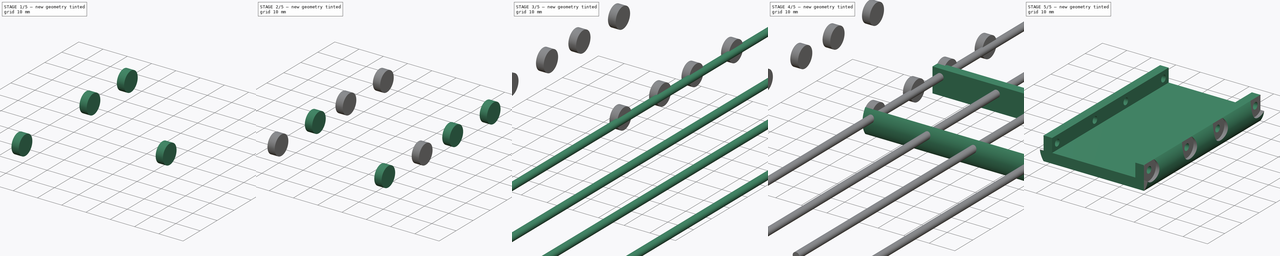
[diagram: build sequence overview — one tinted view per stage of 5, left to right]
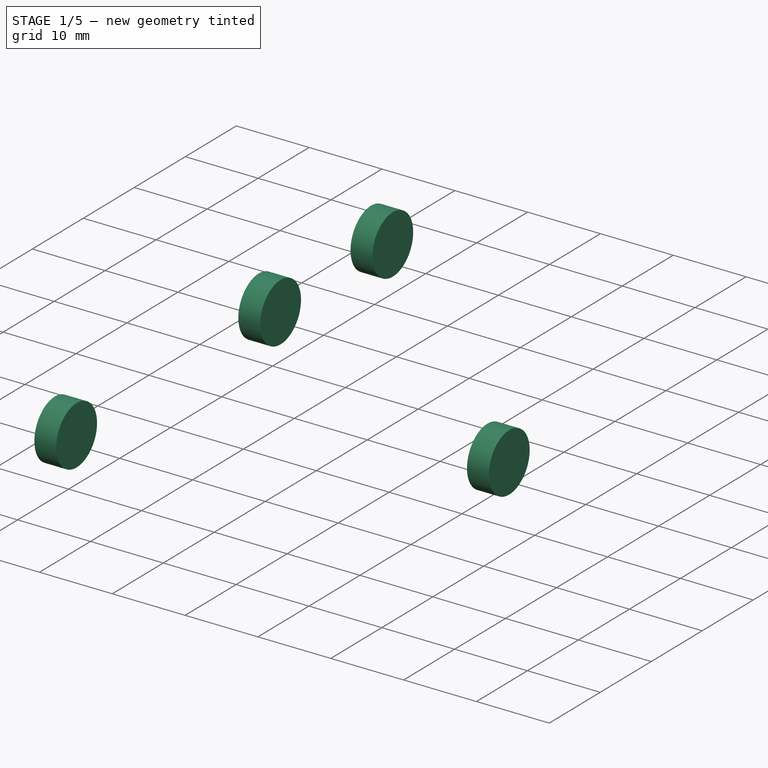
[diagram: stage 1 of 5 — iso view after this stage's code; geometry added in this stage tinted green]
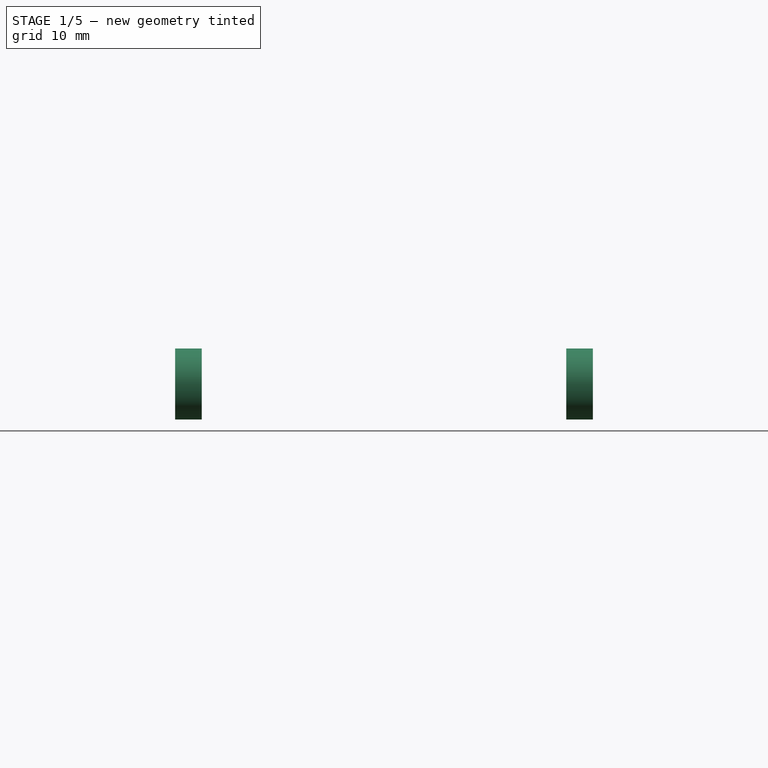
[diagram: stage 1 of 5 — front view after this stage's code; geometry added in this stage tinted green]
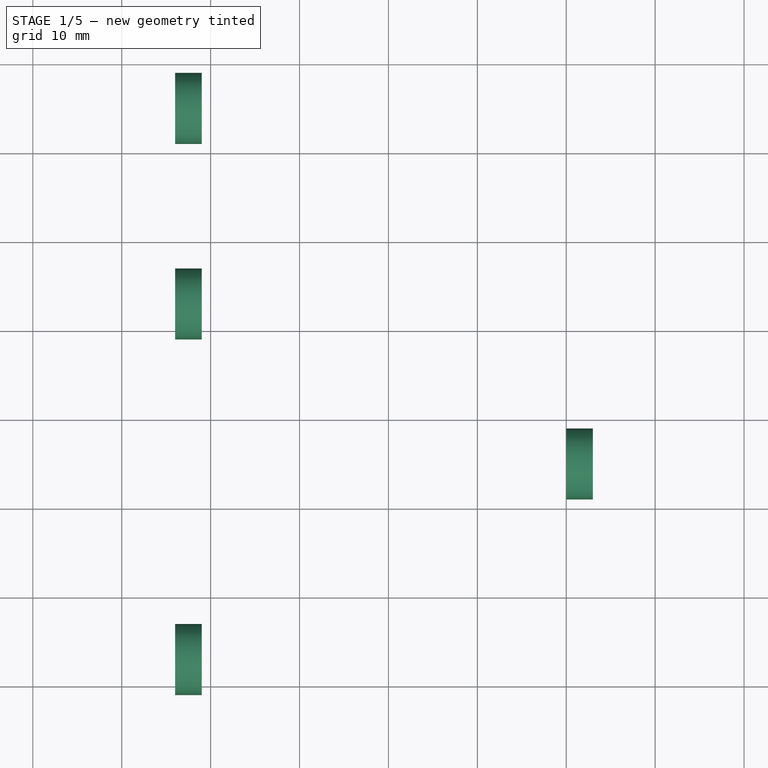
[diagram: stage 1 of 5 — top view after this stage's code; geometry added in this stage tinted green]
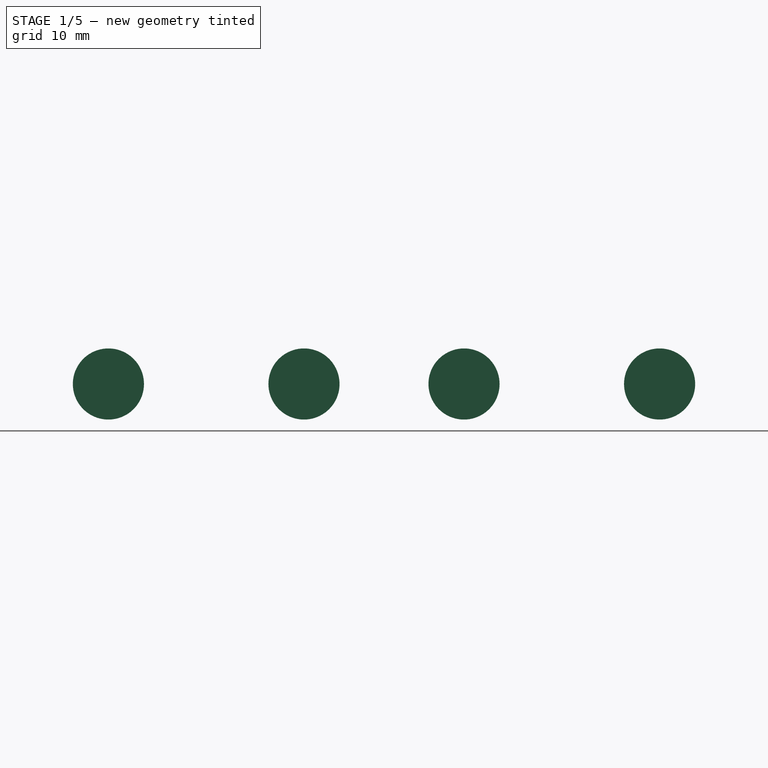
[diagram: stage 1 of 5 — right view after this stage's code; geometry added in this stage tinted green]
FCSTD DOCUMENT  (FreeCAD 0.14R3052 (Git))
Label: inter_mx-64_mount
License: CC-BY 3.0
LicenseURL: http://creativecommons.org/licenses/by/3.0/
objects: Part::Extrusion×13, Sketcher::SketchObject×4, Part::Box×3, Part::MultiFuse×3, Part::Cut×2, Part::Mirroring×1
note: 26 computed .brp shape members not serialized (recipe doc carries the construction recipe); baked Part::Feature solids carry a one-line shape summary decoded from their .brp

FEATURE [Part::Extrusion] Extrude011
  Base = -> Sketch003
  Dir = (-3,0,0)
  Placement = pos=(-44,0,0) rot=(0,0,1;0rad)
  Solid = true
FEATURE [Part::Extrusion] Extrude012
  Base = -> Sketch002
  Dir = (-3,0,0)
  Placement = pos=(0,22,0) rot=(0,0,1;0rad)
  Solid = true
FEATURE [Part::Extrusion] Extrude013
  Base = -> Sketch002
  Dir = (-3,0,0)
  Placement = pos=(-44,40,0) rot=(0,0,1;0rad)
  Solid = true
FEATURE [Part::Extrusion] Extrude014
  Base = -> Sketch002
  Dir = (-3,0,0)
  Placement = pos=(-44,62,0) rot=(0,0,1;0rad)
  Solid = true
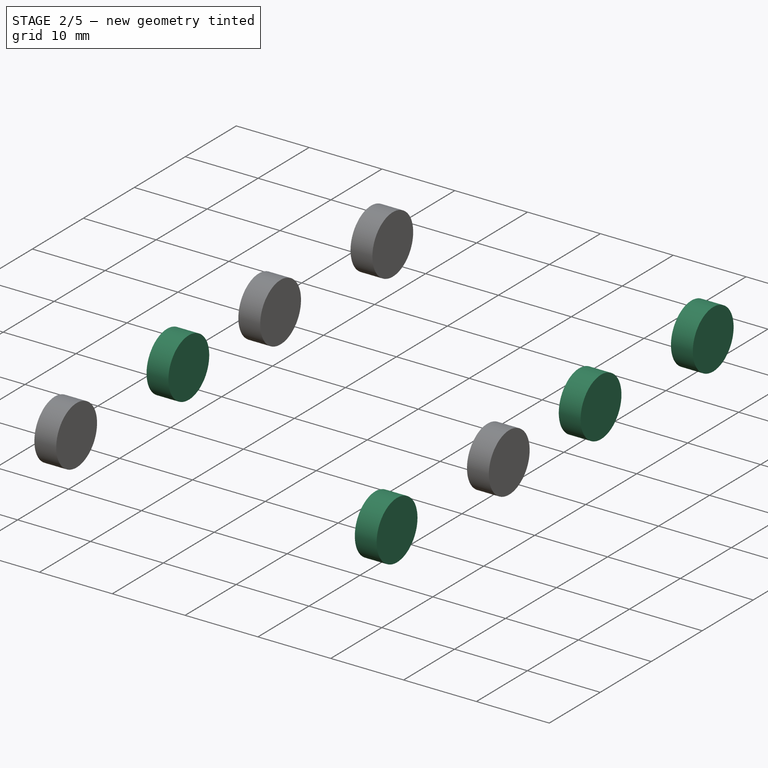
[diagram: stage 2 of 5 — iso view after this stage's code; geometry added in this stage tinted green]
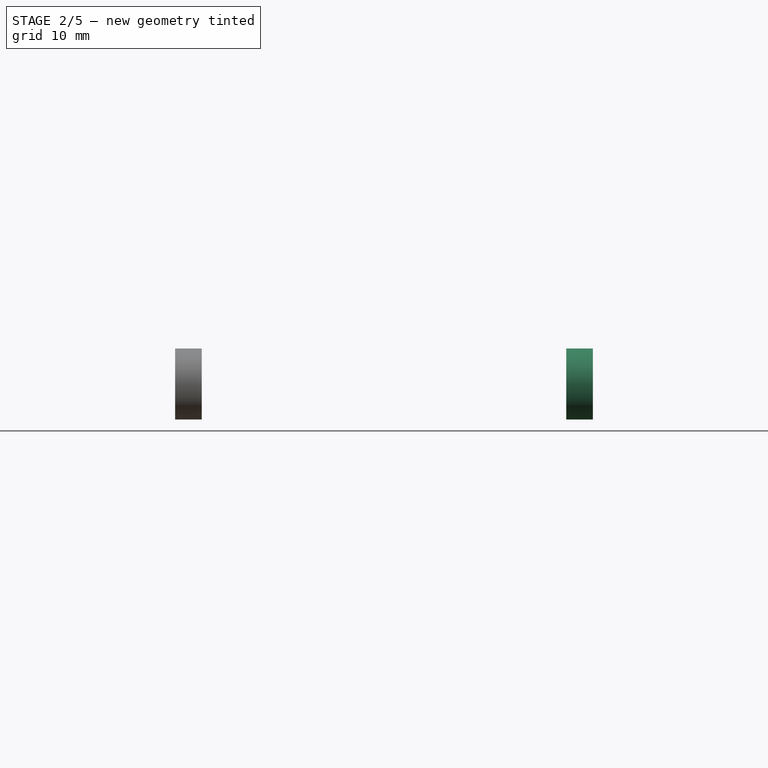
[diagram: stage 2 of 5 — front view after this stage's code; geometry added in this stage tinted green]
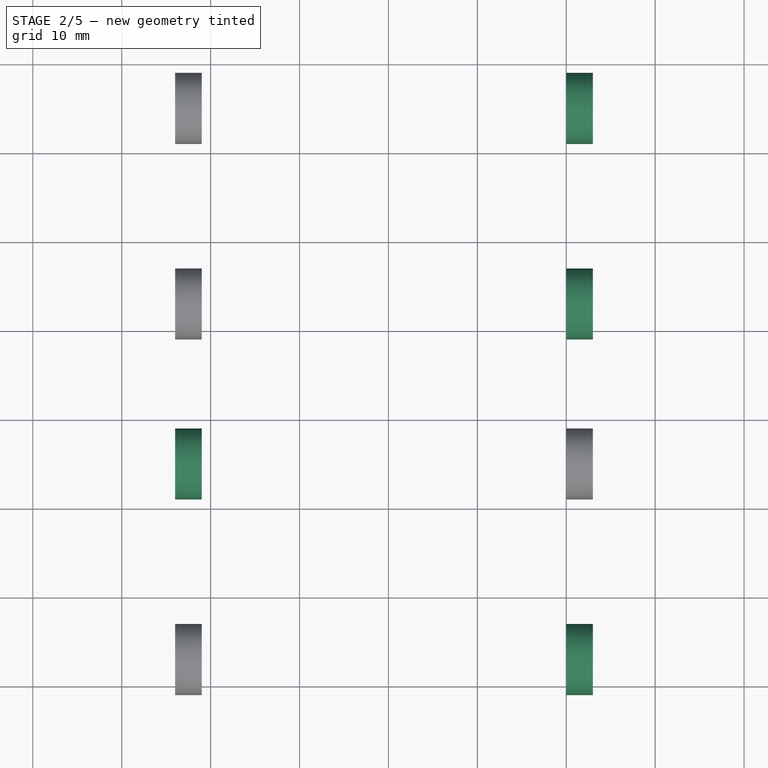
[diagram: stage 2 of 5 — top view after this stage's code; geometry added in this stage tinted green]
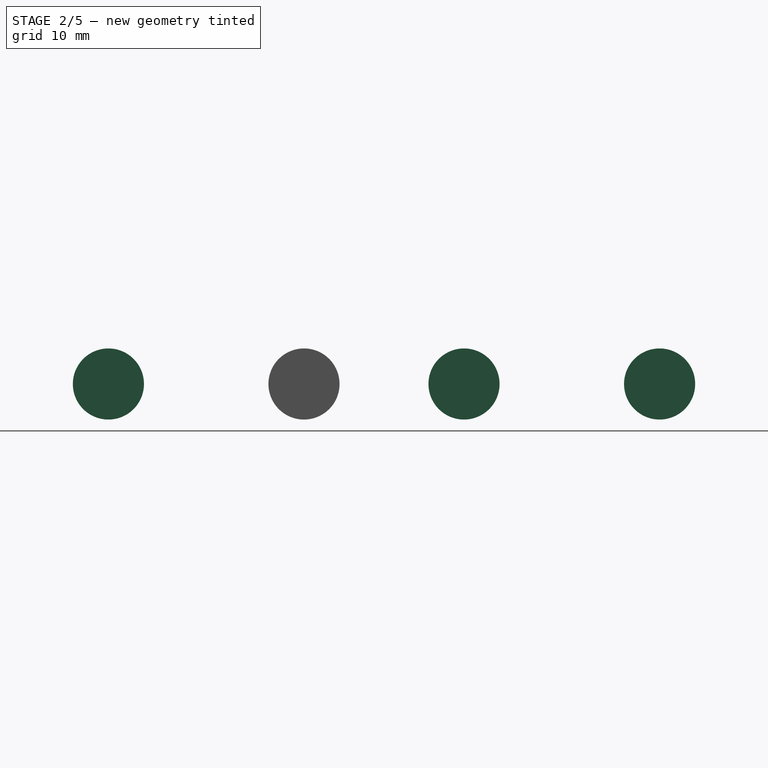
[diagram: stage 2 of 5 — right view after this stage's code; geometry added in this stage tinted green]
FEATURE [Sketcher::SketchObject] Sketch002
  Placement = pos=(3,0,0) rot=(0.57735,0.57735,0.57735;2.0944rad)
  sketch-geometry (1):
    g0: Circle CenterX=3 CenterY=6.6 CenterZ=0 NormalX=0 NormalY=0 NormalZ=1 Radius=4
  constraints (3):
    c: Radius(g0) = 4
    c: DistanceY(g0) = 6.6
    c: DistanceX(g0) = 3
FEATURE [Part::Extrusion] Extrude007
  Base = -> Sketch002
  Dir = (-3,0,0)
  Placement = pos=(-44,22,0) rot=(0,0,1;0rad)
  Solid = true
FEATURE [Part::Extrusion] Extrude008
  Base = -> Sketch002
  Dir = (-3,0,0)
  Placement = pos=(0,40,0) rot=(0,0,1;0rad)
  Solid = true
FEATURE [Part::Extrusion] Extrude009
  Base = -> Sketch002
  Dir = (-3,0,0)
  Placement = pos=(0,62,0) rot=(0,0,1;0rad)
  Solid = true
FEATURE [Sketcher::SketchObject] Sketch003
  Placement = pos=(3,0,0) rot=(0.57735,0.57735,0.57735;2.0944rad)
  sketch-geometry (1):
    g0: Circle CenterX=3 CenterY=6.6 CenterZ=0 NormalX=0 NormalY=0 NormalZ=1 Radius=4
  constraints (3):
    c: Radius(g0) = 4
    c: DistanceY(g0) = 6.6
    c: DistanceX(g0) = 3
FEATURE [Part::Extrusion] Extrude010
  Base = -> Sketch003
  Dir = (-3,0,0)
  Solid = true
FEATURE [Part::MultiFuse] Fusion002
  Shapes = -> [Extrude014,Extrude013,Extrude012,Extrude011,Extrude010,Extrude009,Extrude008,Extrude007]
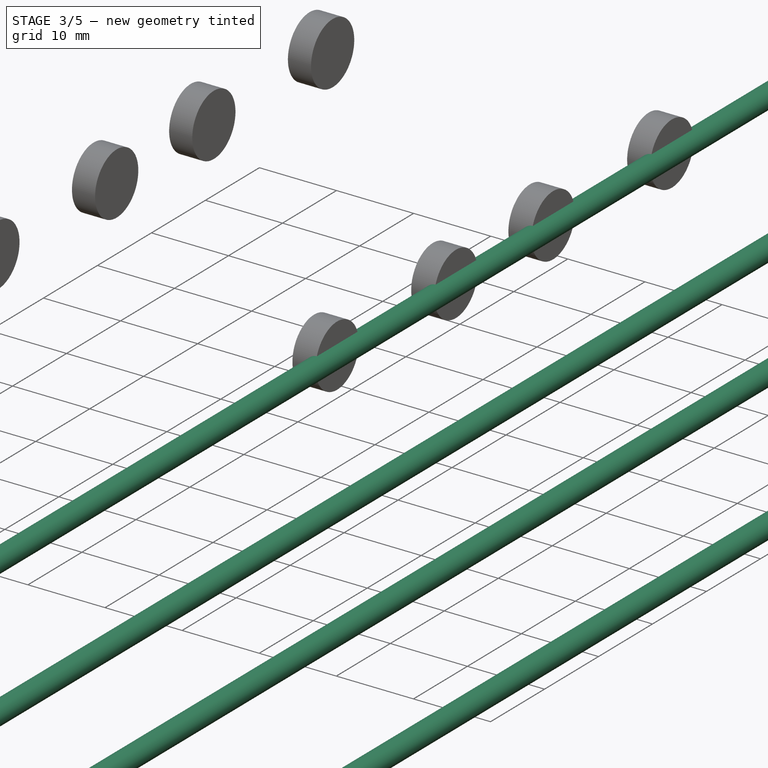
[diagram: stage 3 of 5 — iso view after this stage's code; geometry added in this stage tinted green]
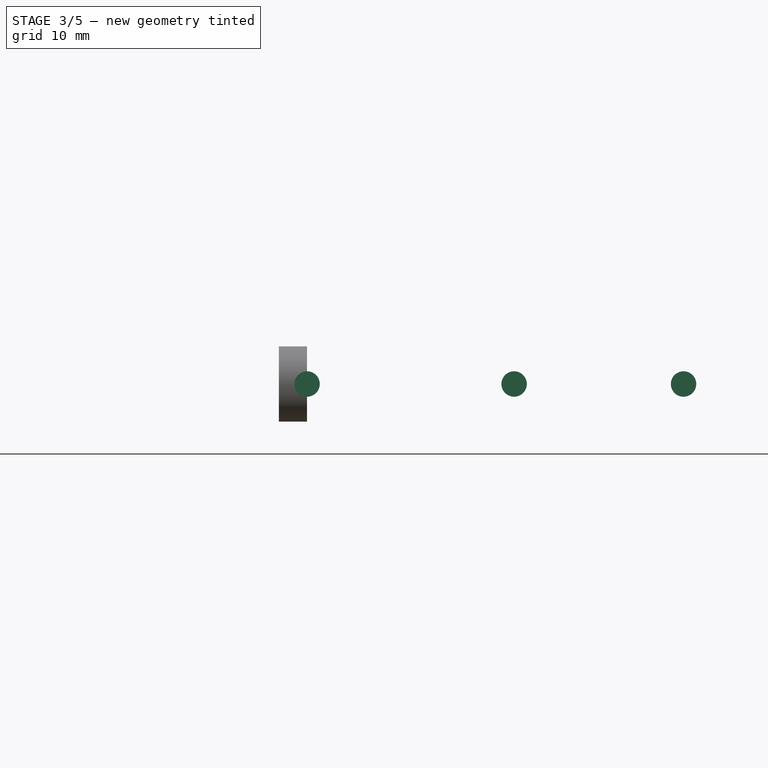
[diagram: stage 3 of 5 — front view after this stage's code; geometry added in this stage tinted green]
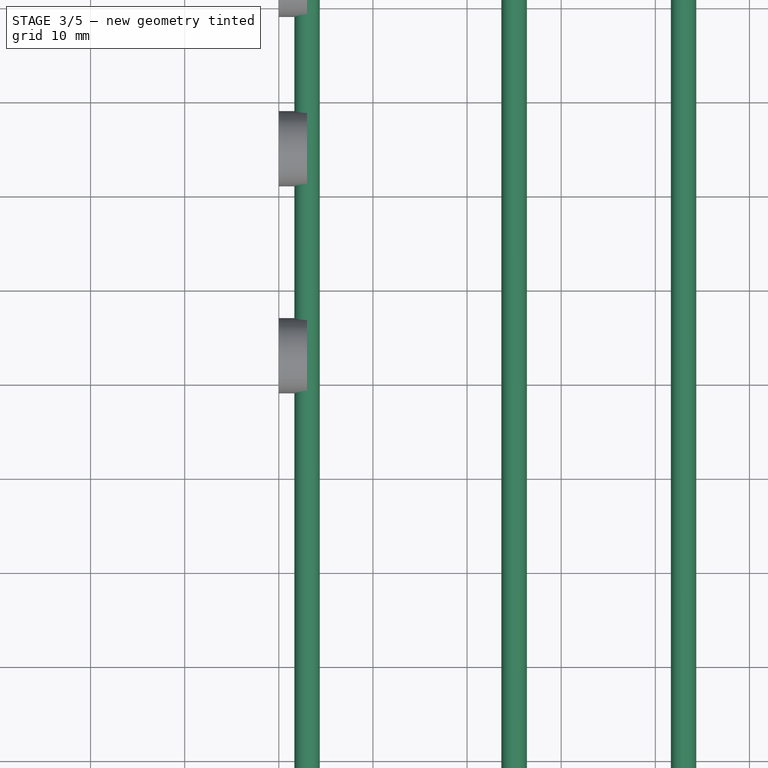
[diagram: stage 3 of 5 — top view after this stage's code; geometry added in this stage tinted green]
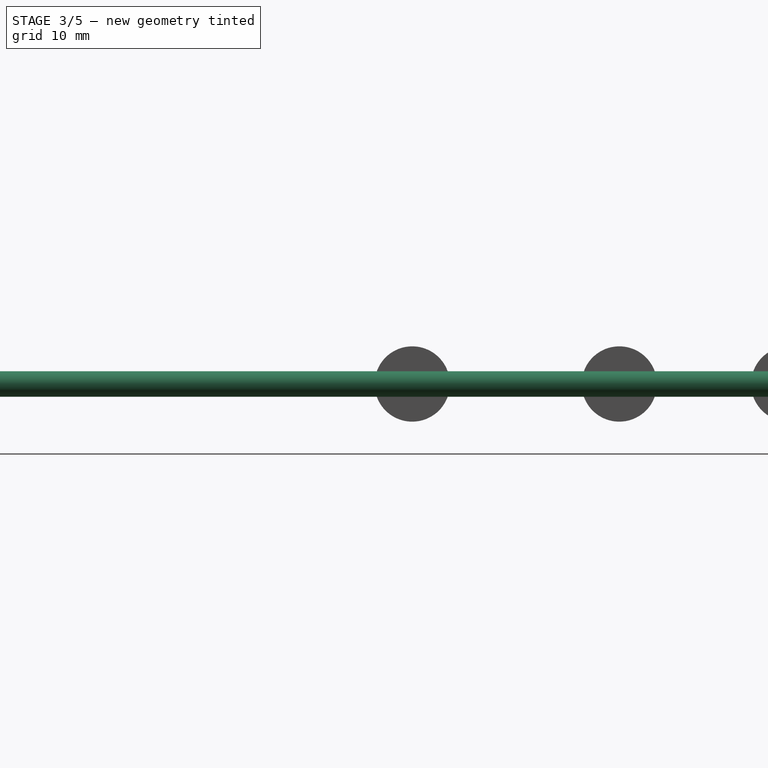
[diagram: stage 3 of 5 — right view after this stage's code; geometry added in this stage tinted green]
FEATURE [Sketcher::SketchObject] Sketch001
  Placement = pos=(0,-100,0) rot=(1,0,0;1.5708rad)
  sketch-geometry (1):
    g0: Circle CenterX=3 CenterY=6.6 CenterZ=0 NormalX=0 NormalY=0 NormalZ=1 Radius=1.35
  constraints (3):
    c: Radius(g0) = 1.35
    c: DistanceY(g0) = 6.6
    c: DistanceX(g0) = 3
FEATURE [Part::Extrusion] Extrude001
  Base = -> Sketch001
  Dir = (0,200,0)
  Solid = true
FEATURE [Part::Extrusion] Extrude002
  Base = -> Sketch001
  Dir = (0,200,0)
  Placement = pos=(22,0,0) rot=(0,0,1;0rad)
  Solid = true
FEATURE [Part::Extrusion] Extrude003
  Base = -> Sketch001
  Dir = (0,200,0)
  Placement = pos=(40,0,0) rot=(0,0,1;0rad)
  Solid = true
FEATURE [Part::Extrusion] Extrude004
  Base = -> Sketch001
  Dir = (0,200,0)
  Placement = pos=(62,0,0) rot=(0,0,1;0rad)
  Solid = true
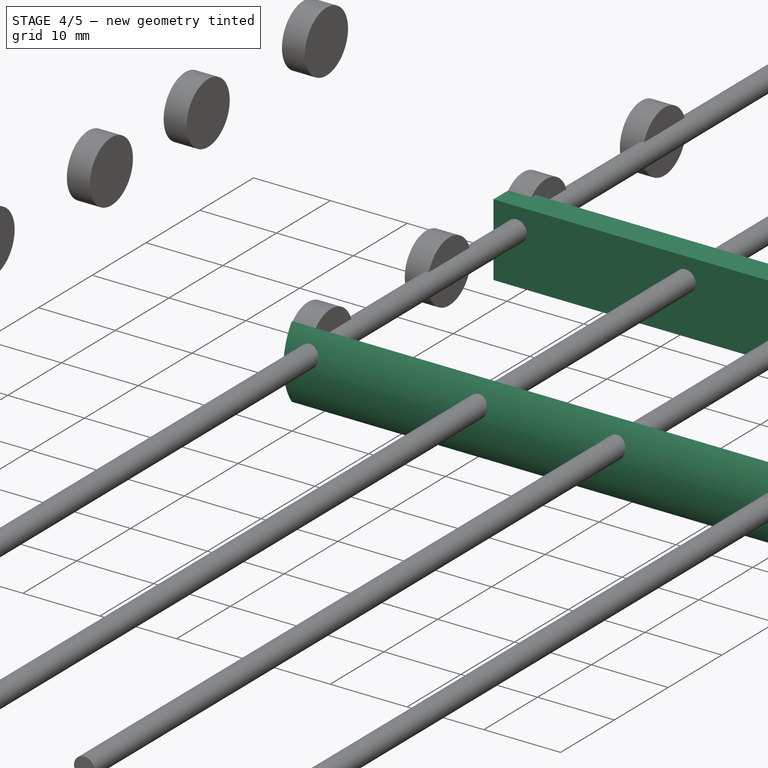
[diagram: stage 4 of 5 — iso view after this stage's code; geometry added in this stage tinted green]
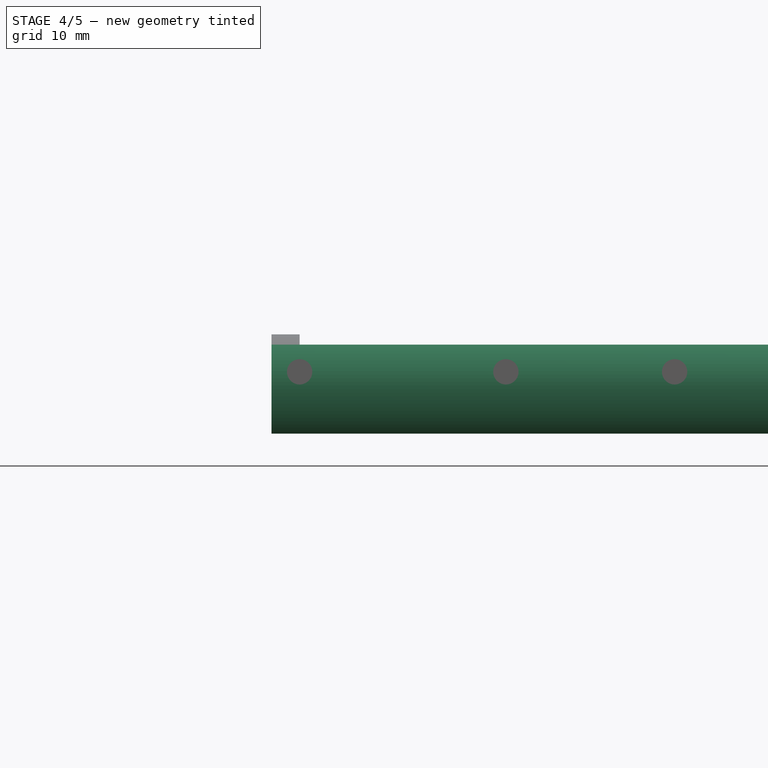
[diagram: stage 4 of 5 — front view after this stage's code; geometry added in this stage tinted green]
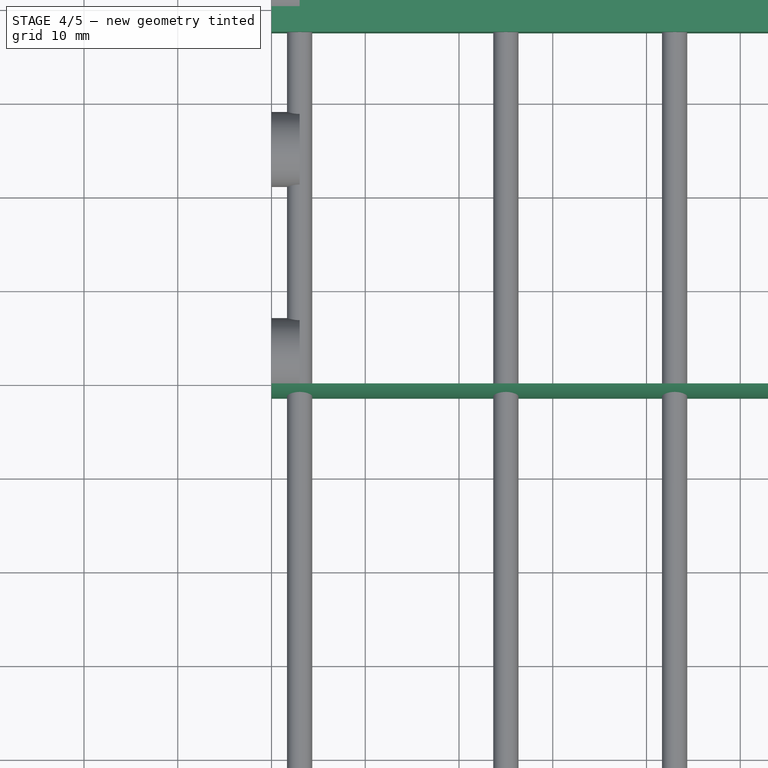
[diagram: stage 4 of 5 — top view after this stage's code; geometry added in this stage tinted green]
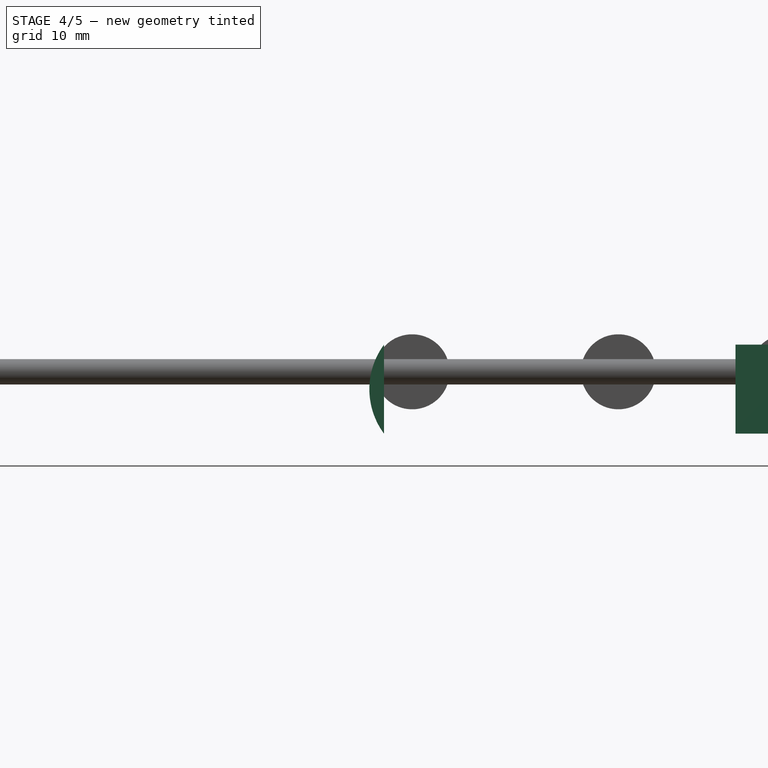
[diagram: stage 4 of 5 — right view after this stage's code; geometry added in this stage tinted green]
FEATURE [Part::Box] Box
  Height = 4
  Length = 68
  Width = 41
FEATURE [Part::Box] Box002
  Height = 9.5
  Length = 68
  Placement = pos=(0,37.5,0) rot=(0,0,1;0rad)
  Width = 3.5
FEATURE [Sketcher::SketchObject] Sketch
  Placement = pos=(0,0,0) rot=(0.57735,-0.57735,-0.57735;2.0944rad)
  Support = -> Box [Face1]
  sketch-geometry (2):
    g0: ArcOfCircle CenterX=-34.5628 CenterY=4.75 CenterZ=0 NormalX=0 NormalY=0 NormalZ=1 Radius=8 StartAngle=2.50588 EndAngle=3.7773
    g1: LineSegment StartX=-41 StartY=9.5 StartZ=0 EndX=-41 EndY=0 EndZ=0
  constraints (9):
    c: Radius(g0) = 8
    c: DistanceY(g0) = 4.75
    c: Vertical(g1)
    c: DistanceX(g1) = -41
    c: DistanceY(g1) = 9.5
    c: DistanceY(g1) = 0
    c: PointOnObject(g0,g1)
    c: PointOnObject(g0,g1)
    c: Coincident(g0,g1)
FEATURE [Part::Extrusion] Extrude
  Base = -> Sketch
  Dir = (68,0,0)
  Solid = true
FEATURE [Part::Mirroring] Part__Mirroring  label="Extrude (Mirror #1)"
  Base = (0,0,0)
  Normal = (0,1,0)
  Placement = pos=(0,41,0) rot=(0,0,1;0rad)
  Source = -> Extrude
FEATURE [Part::MultiFuse] Fusion001  label="Holes"
  Shapes = -> [Extrude001,Extrude002,Extrude004,Extrude003]
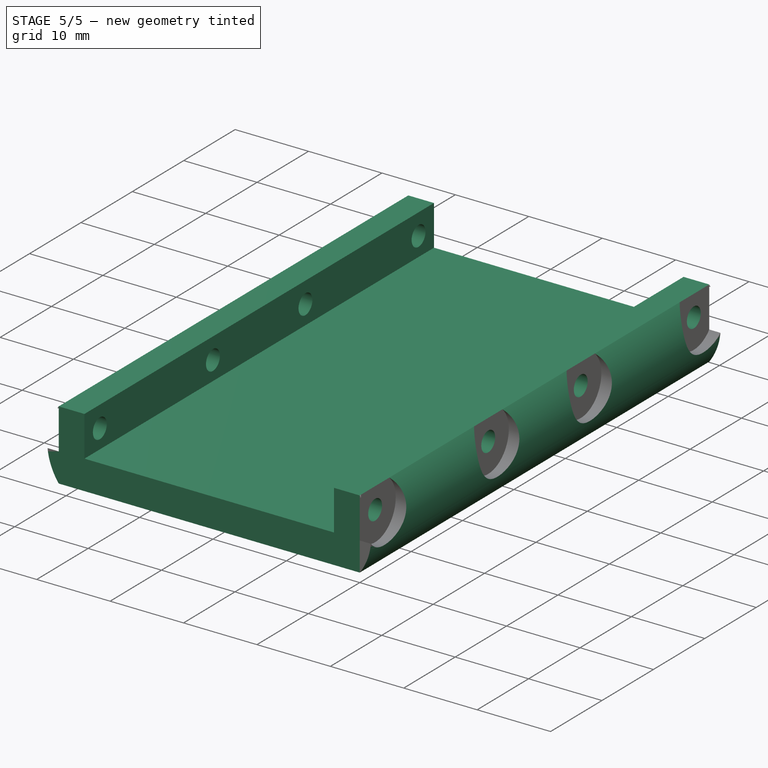
[diagram: stage 5 of 5 — iso view after this stage's code; geometry added in this stage tinted green]
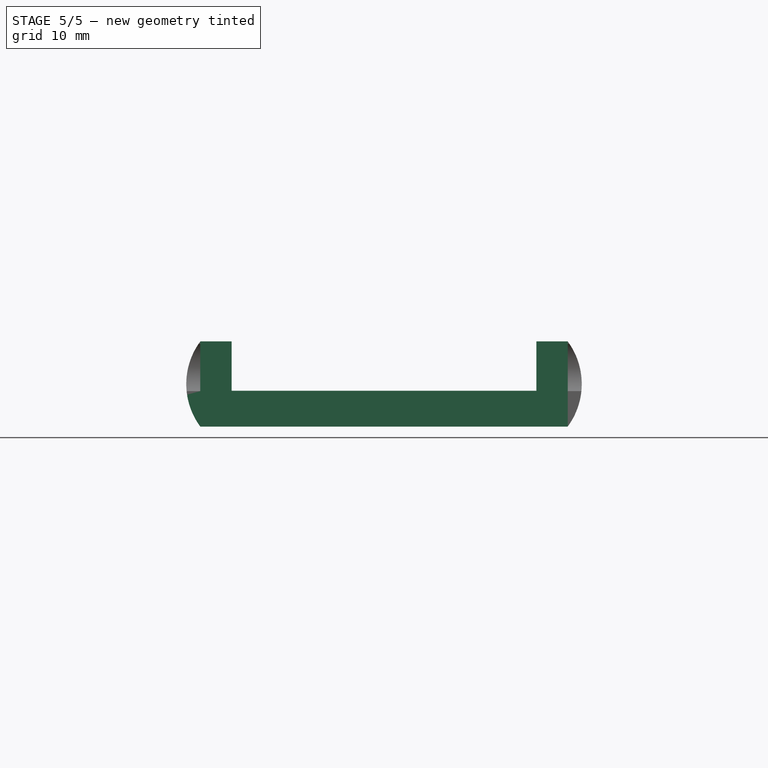
[diagram: stage 5 of 5 — front view after this stage's code; geometry added in this stage tinted green]
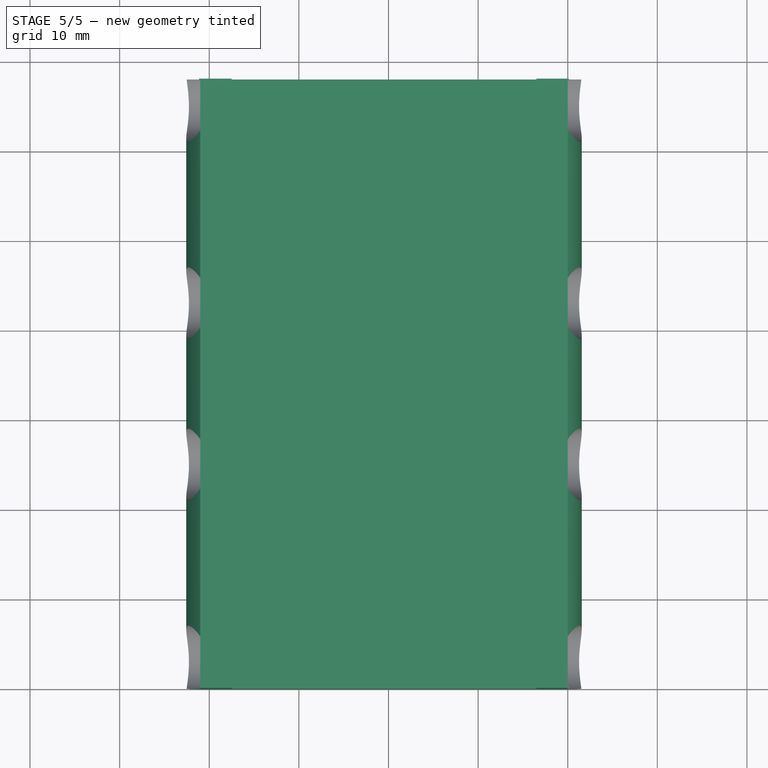
[diagram: stage 5 of 5 — top view after this stage's code; geometry added in this stage tinted green]
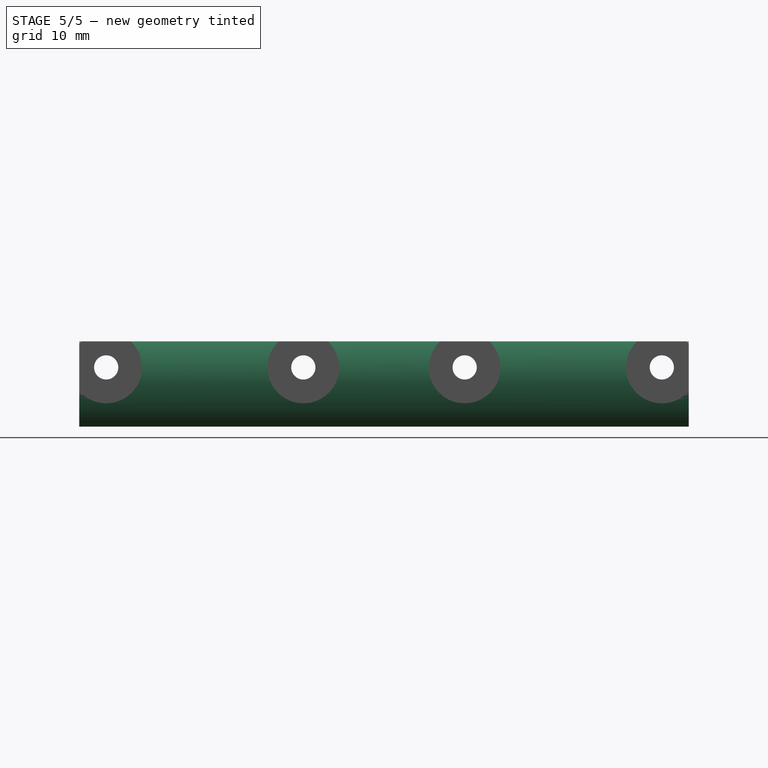
[diagram: stage 5 of 5 — right view after this stage's code; geometry added in this stage tinted green]
FEATURE [Part::Box] Box001
  Height = 9.5
  Length = 68
  Width = 3.5
FEATURE [Part::MultiFuse] Fusion  label="Frame"
  Shapes = -> [Part__Mirroring,Box002,Box001,Box,Extrude]
FEATURE [Part::Cut] Cut
  Base = -> Fusion
  Placement = pos=(0,0,0) rot=(0,0,1;1.5708rad)
  Tool = -> Fusion001
FEATURE [Part::Cut] Cut001
  Base = -> Cut
  Tool = -> Fusion002
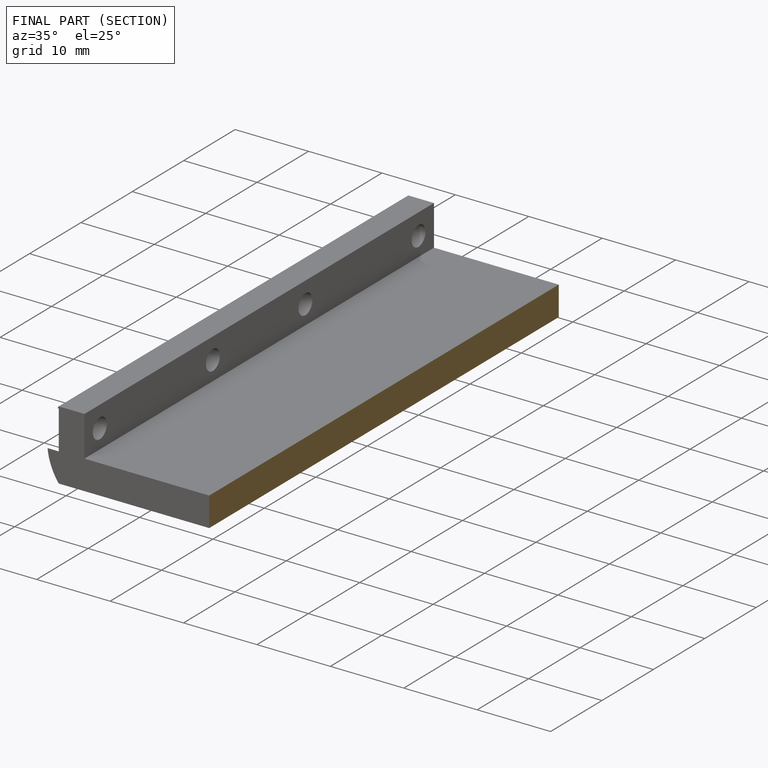
[diagram: finished part — half-section view (interior)]
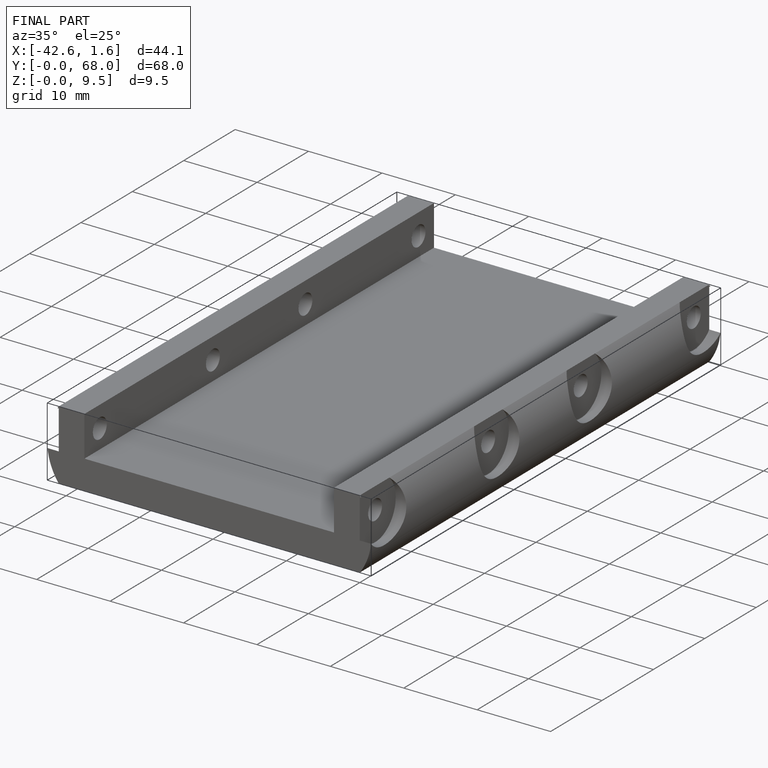
[diagram: finished part — iso view with bounding-box wireframe]
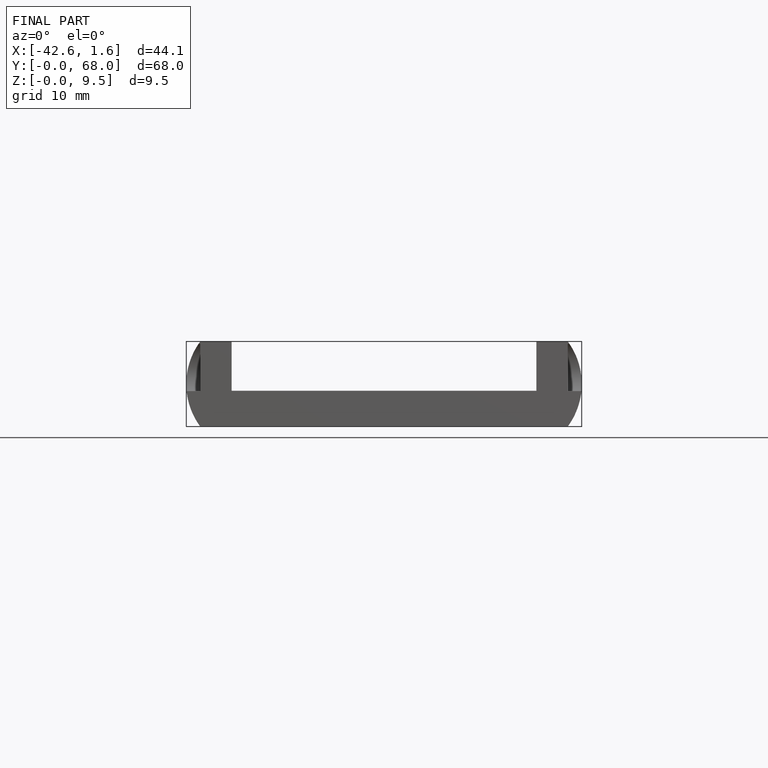
[diagram: finished part — front view with bounding-box wireframe]
